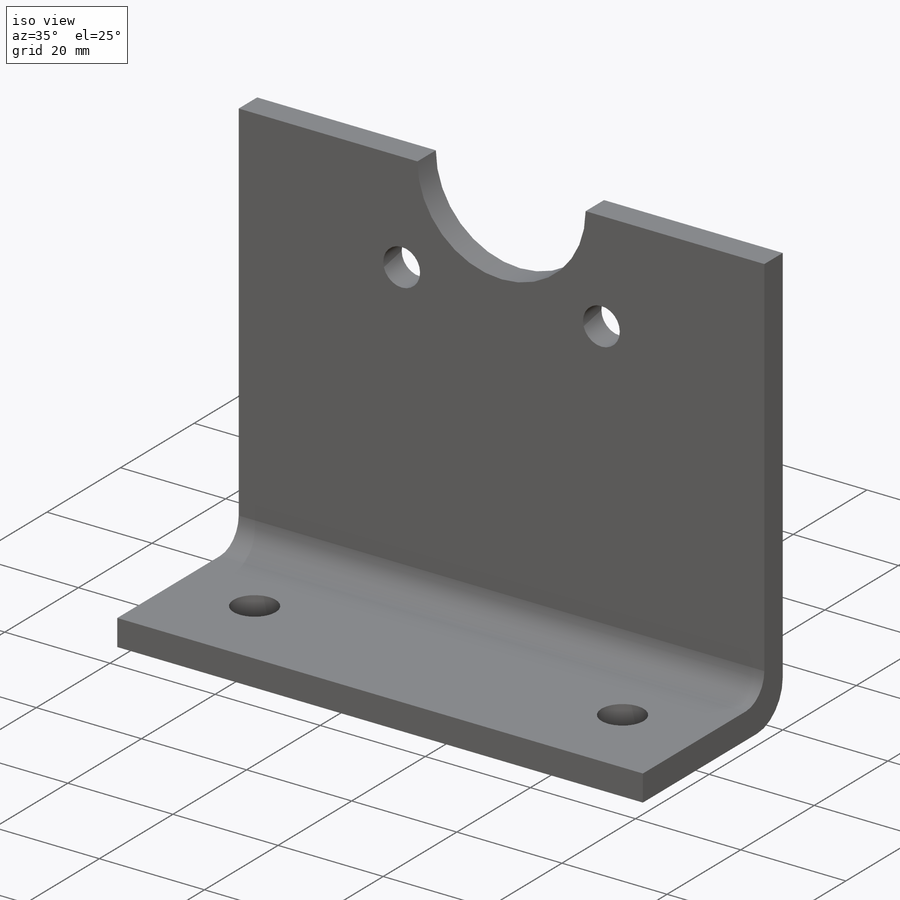
[diagram: iso view]
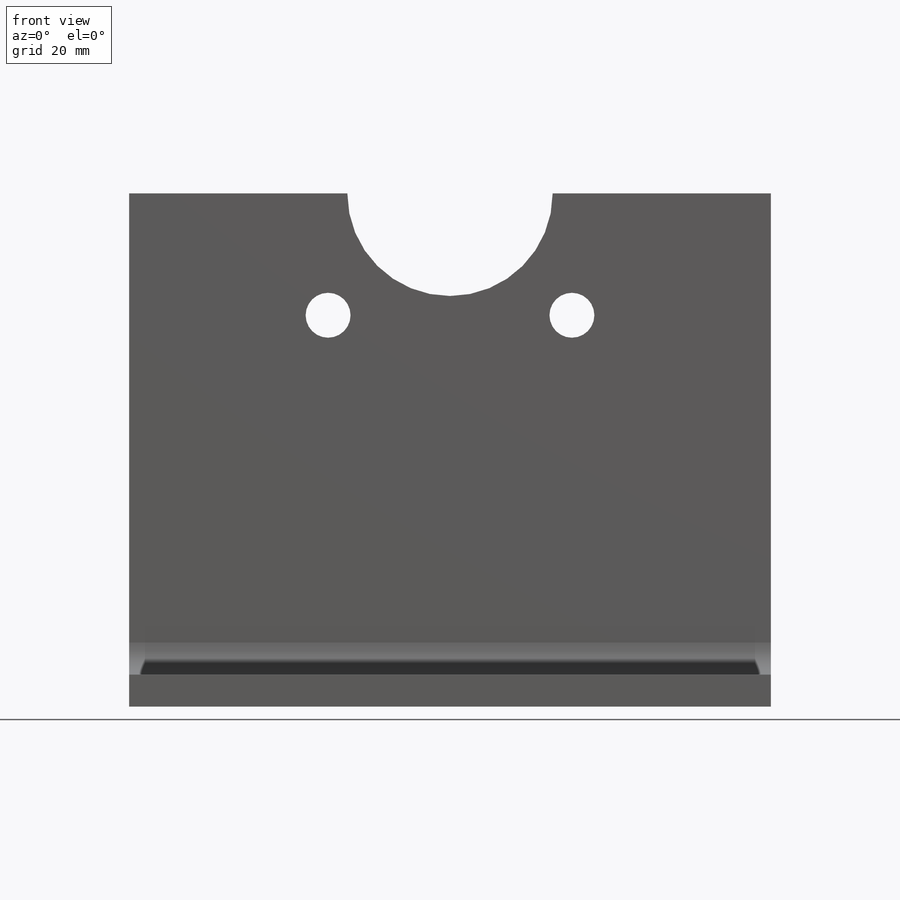
[diagram: front view]
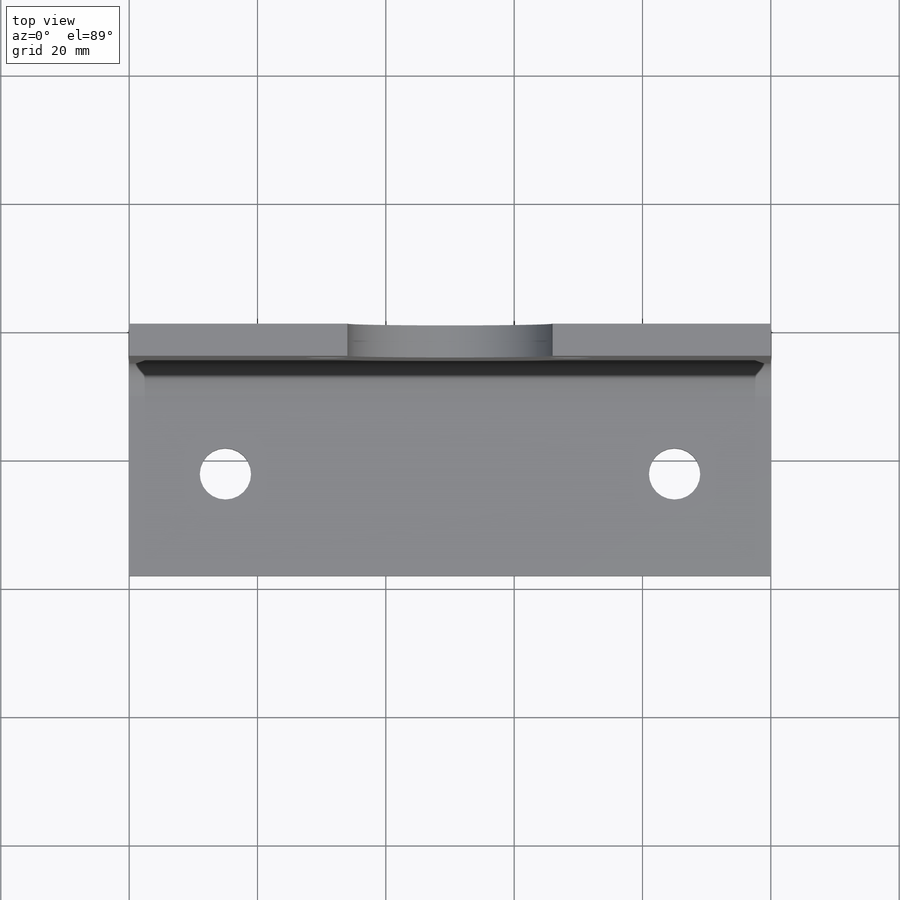
[diagram: top view]
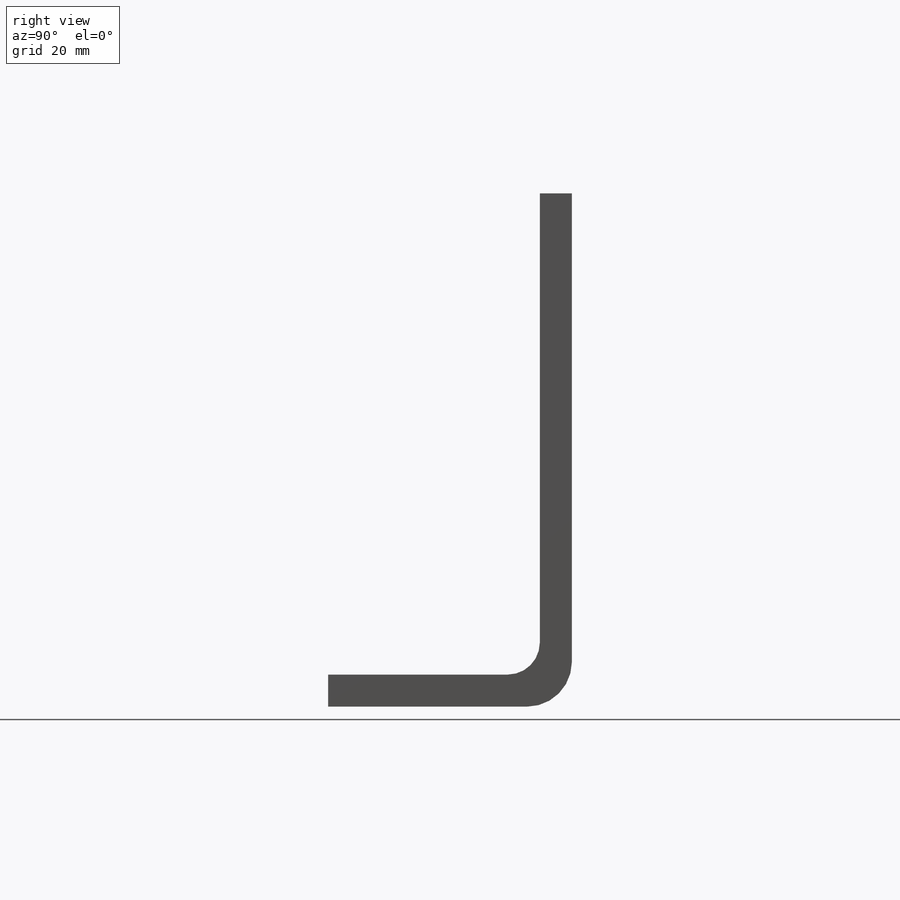
[diagram: right view]
SOLIDWORKS PART (.sldprt)
format: sldprt  version: not decoded by parser v0  size: 153,600 bytes
history: native  units: mm
features: plane x3, sketch x2, extrude x2, fillet x2, material x1 (+13 scaffold rows collapsed)
feature tree (23):
  scaffold x13  (default folders/planes/origin — collapsed)
  material  "Acciaio al carbonio semplice"
  plane  "Piano frontale"
  plane  "Piano superiore"
  plane  "Piano destro"
  sketch  "Schizzo1"  dims[D3=16.0mm D6=7.0mm D1=80.0mm D2=100.0mm D4=38.0mm D5=19.0mm]
  extrude  "Estrusione-Estrusione1"  Depth=5mm
  sketch  "Schizzo3"  dims[D4=8.0mm D1=70.0mm D2=38.0mm D3=15.9mm]
  extrude  "Estrusione-Estrusione2"  Depth=5mm
  fillet  "Raccordo1"  Radius=5mm
  fillet  "Raccordo2"  Radius=7mm
decode coverage: 6 of 6 modeling features carry decoded parameters
note: suppression state not decoded; provenance and decode notes live in map.json
